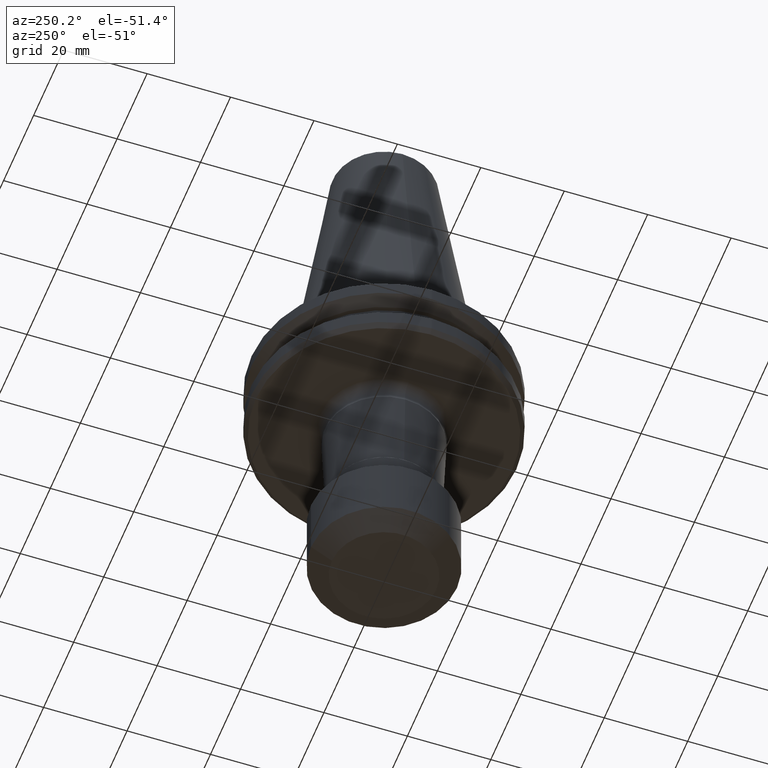
[diagram: clean part render]
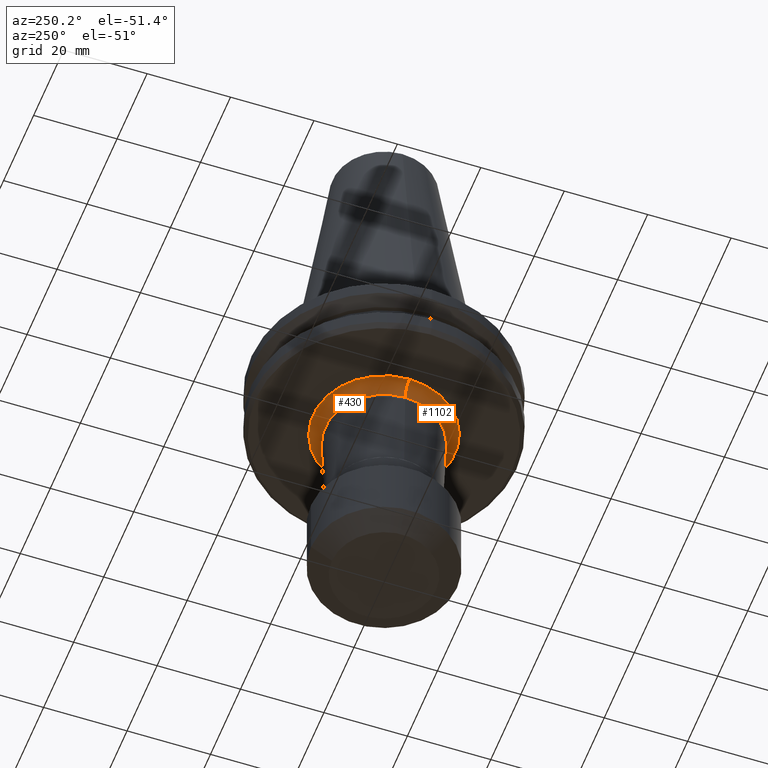
[diagram: same view with one multi-face feature highlighted, each face labeled with its STEP entity id]
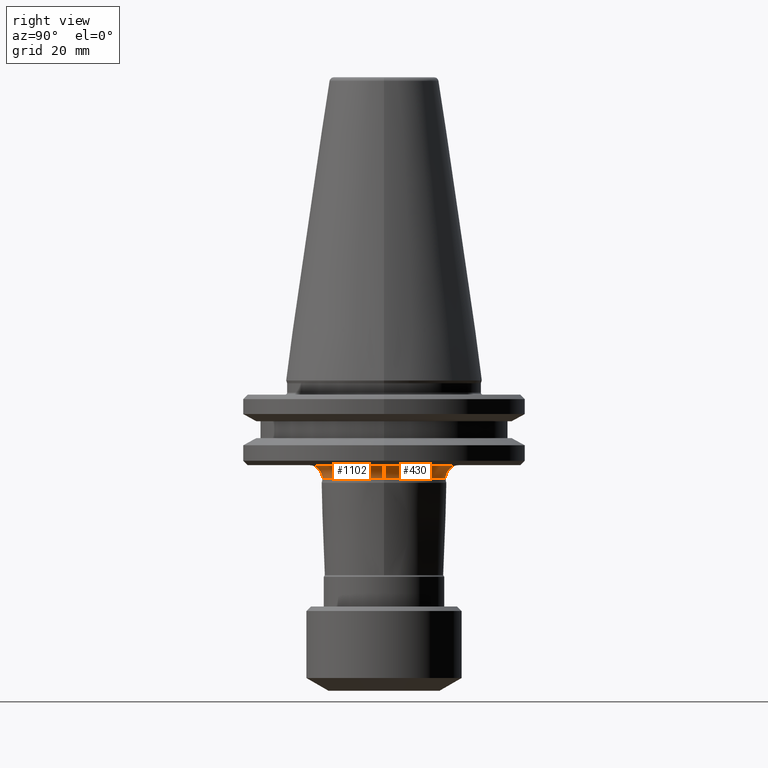
[diagram: same view with one multi-face feature highlighted, each face labeled with its STEP entity id]
A machine part, auxiliary view. The highlighted faces form ONE feature: a constant-radius fillet chain: 2 tangent blend faces with common blend radius 3 mm. The faces share edges in the B-rep.
A second angle (right view) of the same feature is appended — it is thin or edge-on in the first view.
Their STEP definitions:
[1] entity #430 (Torus):
#36 = ORIENTED_EDGE ( 'NONE', *, *, #582, .T. ) ;
#49 = DIRECTION ( 'NONE',  ( -1.000000000000000000, 0.0000000000000000000, 0.0000000000000000000 ) ) ;
#75 = EDGE_CURVE ( 'NONE', #330, #686, #1203, .T. ) ;
#82 = CARTESIAN_POINT ( 'NONE',  ( 16.99999999999584000, 2.081899558549991100E-015, 66.39999999999956500 ) ) ;
#124 = TOROIDAL_SURFACE ( 'NONE', #1213, 16.99999999999584000, 3.000000000000002200 ) ;
#191 = DIRECTION ( 'NONE',  ( 0.0000000000000000000, -1.000000000000000000, 0.0000000000000000000 ) ) ;
#215 = VERTEX_POINT ( 'NONE', #1274 ) ;
#295 = ORIENTED_EDGE ( 'NONE', *, *, #75, .F. ) ;
#308 = AXIS2_PLACEMENT_3D ( 'NONE', #738, #642, #49 ) ;
#330 = VERTEX_POINT ( 'NONE', #1267 ) ;
#331 = DIRECTION ( 'NONE',  ( -0.0000000000000000000, -0.0000000000000000000, -1.000000000000000000 ) ) ;
#334 = ORIENTED_EDGE ( 'NONE', *, *, #428, .F. ) ;
#343 = EDGE_LOOP ( 'NONE', ( #295, #36, #605, #334 ) ) ;
#399 = CIRCLE ( 'NONE', #438, 3.000000000000002700 ) ;
#428 = EDGE_CURVE ( 'NONE', #686, #215, #1295, .T. ) ;
#430 = ADVANCED_FACE ( 'NONE', ( #723 ), #124, .F. ) ;
#438 = AXIS2_PLACEMENT_3D ( 'NONE', #843, #191, #929 ) ;
#439 = EDGE_CURVE ( 'NONE', #1034, #215, #577, .T. ) ;
#544 = DIRECTION ( 'NONE',  ( -1.000000000000000000, -1.224646799147353200E-016, 0.0000000000000000000 ) ) ;
#577 = CIRCLE ( 'NONE', #985, 16.99999999999584000 ) ;
#582 = EDGE_CURVE ( 'NONE', #330, #1034, #399, .T. ) ;
#605 = ORIENTED_EDGE ( 'NONE', *, *, #439, .T. ) ;
#642 = DIRECTION ( 'NONE',  ( -0.0000000000000000000, -0.0000000000000000000, -1.000000000000000000 ) ) ;
#657 = DIRECTION ( 'NONE',  ( -0.0000000000000000000, -0.0000000000000000000, -1.000000000000000000 ) ) ;
#686 = VERTEX_POINT ( 'NONE', #800 ) ;
#723 = FACE_OUTER_BOUND ( 'NONE', #343, .T. ) ;
#738 = CARTESIAN_POINT ( 'NONE',  ( 0.0000000000000000000, 0.0000000000000000000, 66.39999999999956500 ) ) ;
#800 = CARTESIAN_POINT ( 'NONE',  ( 13.99999999999583800, 1.714505518805785000E-015, 66.39999999999956500 ) ) ;
#814 = CARTESIAN_POINT ( 'NONE',  ( -16.99999999999584000, 0.0000000000000000000, 69.39999999999957900 ) ) ;
#843 = CARTESIAN_POINT ( 'NONE',  ( -16.99999999999584000, 0.0000000000000000000, 66.39999999999956500 ) ) ;
#845 = DIRECTION ( 'NONE',  ( -1.000000000000000000, 0.0000000000000000000, 0.0000000000000000000 ) ) ;
#929 = DIRECTION ( 'NONE',  ( 0.0000000000000000000, 0.0000000000000000000, -1.000000000000000000 ) ) ;
#930 = DIRECTION ( 'NONE',  ( -1.224646799147353200E-016, 1.000000000000000000, 0.0000000000000000000 ) ) ;
#939 = CARTESIAN_POINT ( 'NONE',  ( 0.0000000000000000000, 0.0000000000000000000, 69.39999999999957900 ) ) ;
#985 = AXIS2_PLACEMENT_3D ( 'NONE', #939, #331, #1021 ) ;
#1014 = CARTESIAN_POINT ( 'NONE',  ( 0.0000000000000000000, 0.0000000000000000000, 66.39999999999956500 ) ) ;
#1021 = DIRECTION ( 'NONE',  ( -1.000000000000000000, 0.0000000000000000000, 0.0000000000000000000 ) ) ;
#1034 = VERTEX_POINT ( 'NONE', #814 ) ;
#1134 = AXIS2_PLACEMENT_3D ( 'NONE', #82, #930, #544 ) ;
#1203 = CIRCLE ( 'NONE', #308, 13.99999999999583800 ) ;
#1213 = AXIS2_PLACEMENT_3D ( 'NONE', #1014, #657, #845 ) ;
#1267 = CARTESIAN_POINT ( 'NONE',  ( -13.99999999999583800, 0.0000000000000000000, 66.39999999999956500 ) ) ;
#1274 = CARTESIAN_POINT ( 'NONE',  ( 16.99999999999584000, 2.081899558549991100E-015, 69.39999999999957900 ) ) ;
#1295 = CIRCLE ( 'NONE', #1134, 3.000000000000002700 ) ;
[2] entity #1102 (Torus):
#82 = CARTESIAN_POINT ( 'NONE',  ( 16.99999999999584000, 2.081899558549991100E-015, 66.39999999999956500 ) ) ;
#133 = FACE_OUTER_BOUND ( 'NONE', #261, .T. ) ;
#139 = ORIENTED_EDGE ( 'NONE', *, *, #947, .T. ) ;
#191 = DIRECTION ( 'NONE',  ( 0.0000000000000000000, -1.000000000000000000, 0.0000000000000000000 ) ) ;
#207 = CARTESIAN_POINT ( 'NONE',  ( 0.0000000000000000000, 0.0000000000000000000, 66.39999999999956500 ) ) ;
#215 = VERTEX_POINT ( 'NONE', #1274 ) ;
#261 = EDGE_LOOP ( 'NONE', ( #639, #371, #139, #1016 ) ) ;
#330 = VERTEX_POINT ( 'NONE', #1267 ) ;
#335 = DIRECTION ( 'NONE',  ( -1.000000000000000000, 0.0000000000000000000, 0.0000000000000000000 ) ) ;
#371 = ORIENTED_EDGE ( 'NONE', *, *, #428, .T. ) ;
#397 = CARTESIAN_POINT ( 'NONE',  ( 0.0000000000000000000, 0.0000000000000000000, 66.39999999999956500 ) ) ;
#399 = CIRCLE ( 'NONE', #438, 3.000000000000002700 ) ;
#428 = EDGE_CURVE ( 'NONE', #686, #215, #1295, .T. ) ;
#438 = AXIS2_PLACEMENT_3D ( 'NONE', #843, #191, #929 ) ;
#517 = DIRECTION ( 'NONE',  ( -0.0000000000000000000, -0.0000000000000000000, -1.000000000000000000 ) ) ;
#544 = DIRECTION ( 'NONE',  ( -1.000000000000000000, -1.224646799147353200E-016, 0.0000000000000000000 ) ) ;
#582 = EDGE_CURVE ( 'NONE', #330, #1034, #399, .T. ) ;
#639 = ORIENTED_EDGE ( 'NONE', *, *, #774, .F. ) ;
#686 = VERTEX_POINT ( 'NONE', #800 ) ;
#708 = AXIS2_PLACEMENT_3D ( 'NONE', #397, #1154, #1263 ) ;
#766 = CIRCLE ( 'NONE', #974, 16.99999999999584000 ) ;
#774 = EDGE_CURVE ( 'NONE', #686, #330, #851, .T. ) ;
#800 = CARTESIAN_POINT ( 'NONE',  ( 13.99999999999583800, 1.714505518805785000E-015, 66.39999999999956500 ) ) ;
#814 = CARTESIAN_POINT ( 'NONE',  ( -16.99999999999584000, 0.0000000000000000000, 69.39999999999957900 ) ) ;
#843 = CARTESIAN_POINT ( 'NONE',  ( -16.99999999999584000, 0.0000000000000000000, 66.39999999999956500 ) ) ;
#851 = CIRCLE ( 'NONE', #884, 13.99999999999583800 ) ;
#884 = AXIS2_PLACEMENT_3D ( 'NONE', #207, #942, #335 ) ;
#929 = DIRECTION ( 'NONE',  ( 0.0000000000000000000, 0.0000000000000000000, -1.000000000000000000 ) ) ;
#930 = DIRECTION ( 'NONE',  ( -1.224646799147353200E-016, 1.000000000000000000, 0.0000000000000000000 ) ) ;
#942 = DIRECTION ( 'NONE',  ( -0.0000000000000000000, -0.0000000000000000000, -1.000000000000000000 ) ) ;
#947 = EDGE_CURVE ( 'NONE', #215, #1034, #766, .T. ) ;
#974 = AXIS2_PLACEMENT_3D ( 'NONE', #1075, #517, #1167 ) ;
#1016 = ORIENTED_EDGE ( 'NONE', *, *, #582, .F. ) ;
#1034 = VERTEX_POINT ( 'NONE', #814 ) ;
#1035 = TOROIDAL_SURFACE ( 'NONE', #708, 16.99999999999584000, 3.000000000000002200 ) ;
#1075 = CARTESIAN_POINT ( 'NONE',  ( 0.0000000000000000000, 0.0000000000000000000, 69.39999999999957900 ) ) ;
#1102 = ADVANCED_FACE ( 'NONE', ( #133 ), #1035, .F. ) ;
#1134 = AXIS2_PLACEMENT_3D ( 'NONE', #82, #930, #544 ) ;
#1154 = DIRECTION ( 'NONE',  ( -0.0000000000000000000, -0.0000000000000000000, -1.000000000000000000 ) ) ;
#1167 = DIRECTION ( 'NONE',  ( -1.000000000000000000, 0.0000000000000000000, 0.0000000000000000000 ) ) ;
#1263 = DIRECTION ( 'NONE',  ( -1.000000000000000000, 0.0000000000000000000, 0.0000000000000000000 ) ) ;
#1267 = CARTESIAN_POINT ( 'NONE',  ( -13.99999999999583800, 0.0000000000000000000, 66.39999999999956500 ) ) ;
#1274 = CARTESIAN_POINT ( 'NONE',  ( 16.99999999999584000, 2.081899558549991100E-015, 69.39999999999957900 ) ) ;
#1295 = CIRCLE ( 'NONE', #1134, 3.000000000000002700 ) ;